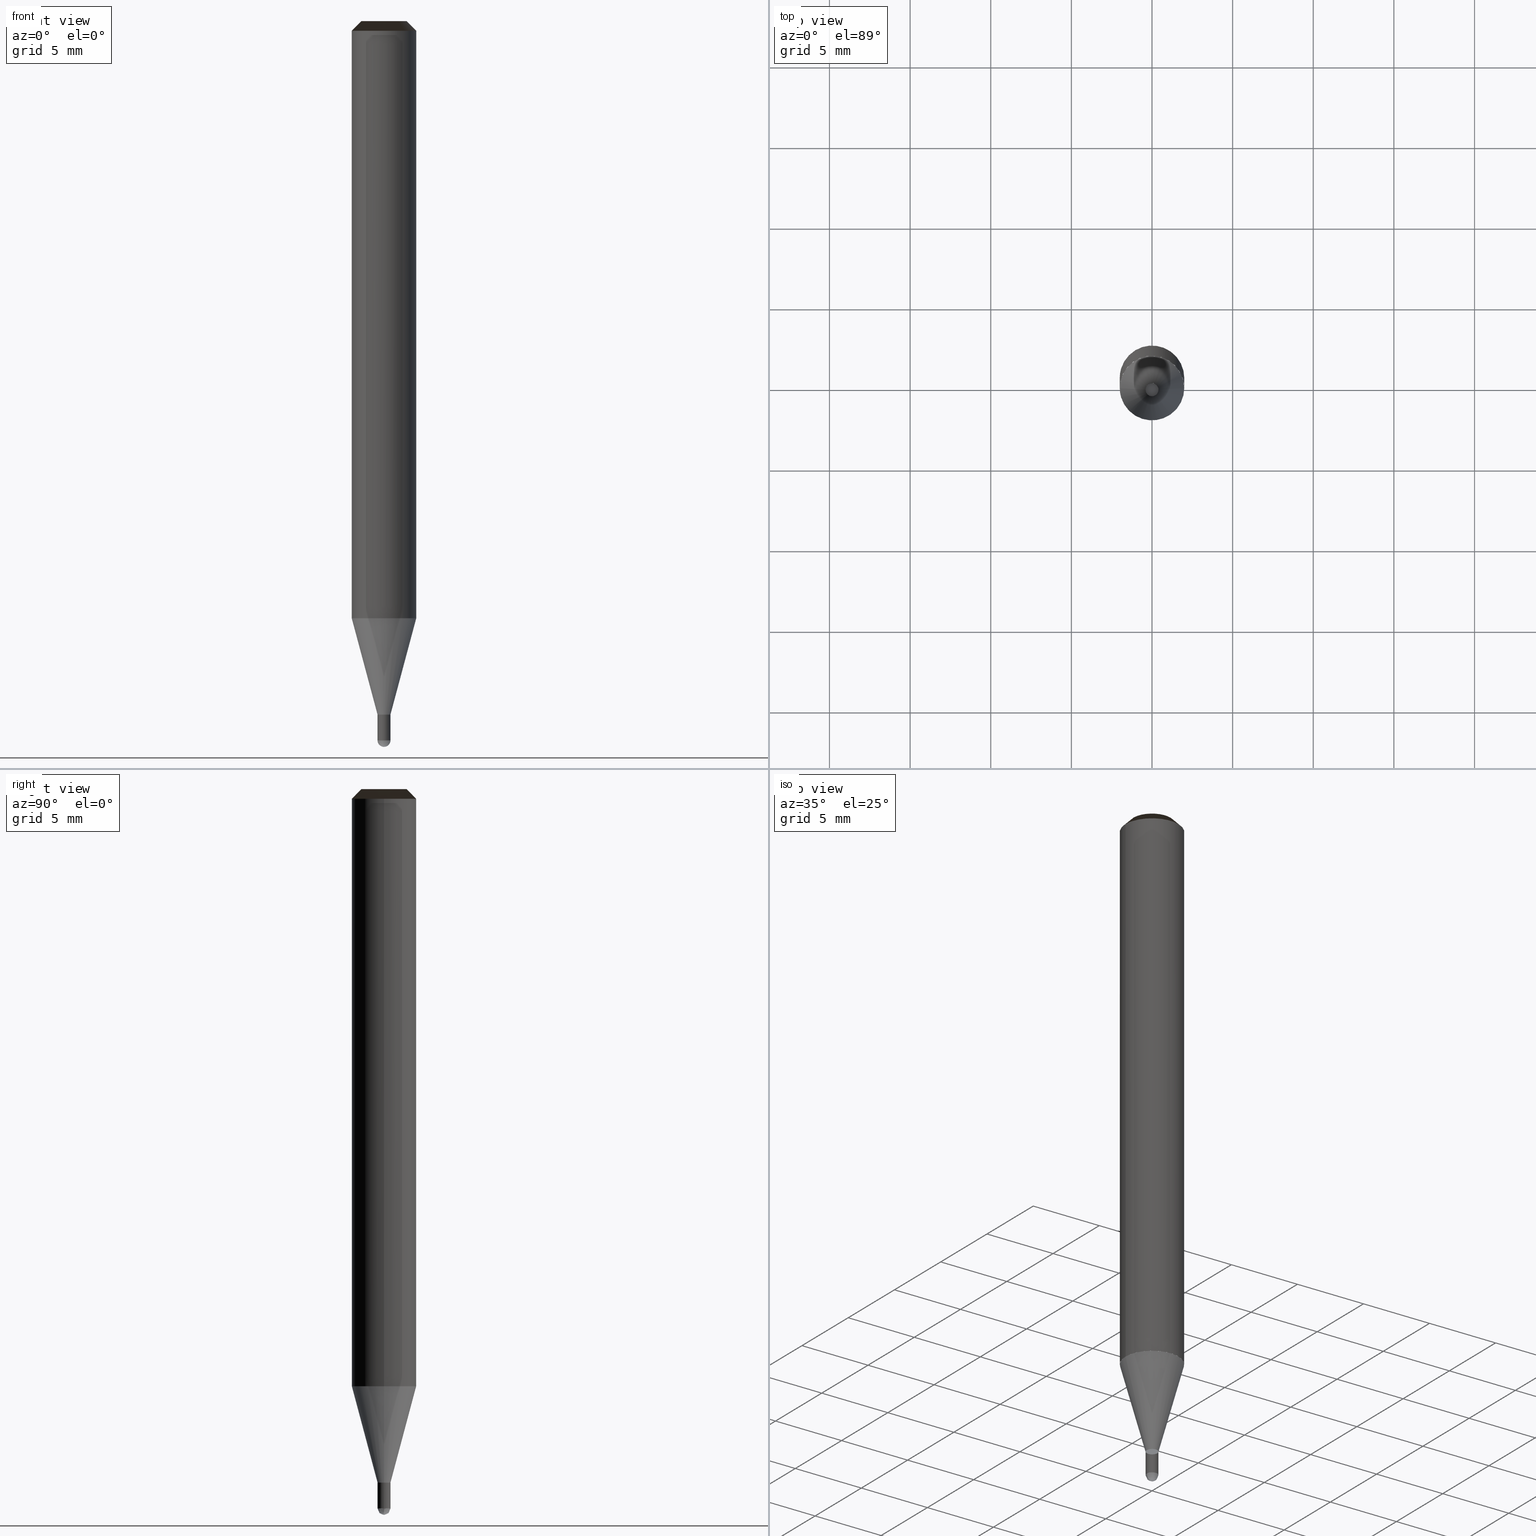
[diagram: canonical four-view strip — front | top / right | iso, engineering-drawing reading convention]
A machine part, canonical four-view strip (front | top / right | iso — engineering-drawing reading convention). The complete STEP part file that produces these views, byte-faithful:
ISO-10303-21;
HEADER;
/* Generated by ISBE GmbH (www.isbe.de) */
/* OPTION: using custom schema-name function */

FILE_DESCRIPTION(
/* description */ (''),
/* implementation_level */ '2;1');

FILE_NAME(
/*name*/ 'SHBS-2008-S04-STH',
/*time_stamp*/'2023-9-12T13:7:11',
/*author*/ ('ISBE GmbH'),
/*organization*/ ('ISBE GmbH'),
/*preprocessor_version*/ 'STEP IO v1.0',
/*originating_system*/ '',
/*authorisation*/ '');

FILE_SCHEMA (('AUTOMOTIVE_DESIGN'));
ENDSEC;

DATA;
#10=SHAPE_DEFINITION_REPRESENTATION(#11,#57);
#11=PRODUCT_DEFINITION_SHAPE('Document','',#13);
#12=PRODUCT_DEFINITION_CONTEXT('3D Mechanical Parts',#17,'design');
#13=PRODUCT_DEFINITION('A','First version',#14,#12);
#14=PRODUCT_DEFINITION_FORMATION_WITH_SPECIFIED_SOURCE('A','First version',#19,.MADE.);
#15=PRODUCT_RELATED_PRODUCT_CATEGORY('tool','tool',(#19));
#16=APPLICATION_PROTOCOL_DEFINITION('Draft International Standard', 'automotive_design',1999,#17);
#17=APPLICATION_CONTEXT('data for automotive mechanical design processes');
#18=PRODUCT_CONTEXT('3D Mechanical Parts',#17,'mechanical');
#19=PRODUCT('Document','Document','ISBE converted to STEP',(#18));
#20=(
LENGTH_UNIT()
NAMED_UNIT(*)
SI_UNIT(.MILLI.,.METRE.)
);
#21=(
NAMED_UNIT(*)
PLANE_ANGLE_UNIT()
SI_UNIT($,.RADIAN.)
);
#22=DIMENSIONAL_EXPONENTS(0.,0.,0.,0.,0.,0.,0.);
#23=PLANE_ANGLE_MEASURE_WITH_UNIT(PLANE_ANGLE_MEASURE(0.01745329252),#21);
#24=(
CONVERSION_BASED_UNIT('DEGREES',#23)
NAMED_UNIT(#22)
PLANE_ANGLE_UNIT()
);
#25=(
NAMED_UNIT(*)
SI_UNIT($,.STERADIAN.)
SOLID_ANGLE_UNIT()
);
#26=UNCERTAINTY_MEASURE_WITH_UNIT(LENGTH_MEASURE(0.001),#20, 'DISTANCE_ACCURACY_VALUE', 'Maximum model space distance between geometric entities at asserted connectivities');
#27=(
GEOMETRIC_REPRESENTATION_CONTEXT(3)
GLOBAL_UNCERTAINTY_ASSIGNED_CONTEXT((#26))
GLOBAL_UNIT_ASSIGNED_CONTEXT((#25,#24,#20))
REPRESENTATION_CONTEXT('ID1','3D')
);
#28=CARTESIAN_POINT('',(0.0,0.0,0.0));
#29=DIRECTION('',(1.0,0.0,0.0));
#30=DIRECTION('',(0.0,0.0,1.0));
#31=AXIS2_PLACEMENT_3D('',#28,#30,#29);
#32=CARTESIAN_POINT('',(0.0,0.0,0.0));
#33=DIRECTION('',(1.0,0.0,0.0));
#34=DIRECTION('',(0.0,0.0,1.0));
#35=AXIS2_PLACEMENT_3D('',#32,#34,#33);
#36=CARTESIAN_POINT('',(0.0,0.0,0.0));
#37=DIRECTION('',(1.0,0.0,0.0));
#38=DIRECTION('',(0.0,0.0,1.0));
#39=AXIS2_PLACEMENT_3D('',#36,#38,#37);
#40=CARTESIAN_POINT('',(0.0,0.0,0.0));
#41=DIRECTION('',(0.0,0.0,1.0));
#42=DIRECTION('',(1.0,0.0,0.0));
#43=AXIS2_PLACEMENT_3D('MCS',#40,#42,#41);
#44=CARTESIAN_POINT('',(0.0,0.0,37.028));
#45=DIRECTION('',(0.0,0.0,1.0));
#46=DIRECTION('',(1.0,0.0,0.0));
#47=AXIS2_PLACEMENT_3D('PCS',#44,#46,#45);
#48=CARTESIAN_POINT('',(0.0,0.0,-7.972));
#49=DIRECTION('',(0.0,0.0,1.0));
#50=DIRECTION('',(1.0,0.0,0.0));
#51=AXIS2_PLACEMENT_3D('CIP',#48,#50,#49);
#52=CARTESIAN_POINT('',(0.0,-0.4,-7.972));
#53=DIRECTION('',(0.0,0.0,1.0));
#54=DIRECTION('',(1.0,0.0,0.0));
#55=AXIS2_PLACEMENT_3D('CRP',#52,#54,#53);
#57=SHAPE_REPRESENTATION('Document',(#31,#35,#39,#43,#47,#51,#55),#27);
#58=DIRECTION('',(1.0,0.0,0.0));
#59=DIRECTION('',(0.0,0.0,1.0));
#60=CARTESIAN_POINT('',(-0.003999796276,-0.000040370176,-7.971935880373));
#61=CARTESIAN_POINT('',(-0.003874368308,-0.01222120494,-7.97179448648));
#62=CARTESIAN_POINT('',(-0.003716583176,-0.025357166712,-7.9711781571));
#63=CARTESIAN_POINT('',(-0.003515768424,-0.038247964823,-7.97015164518));
#64=CARTESIAN_POINT('',(-0.003247927384,-0.051047643673,-7.968716005529));
#65=CARTESIAN_POINT('',(-0.002890768818,-0.063774475261,-7.966872713366));
#66=CARTESIAN_POINT('',(-0.002422680824,-0.076425061531,-7.964623662796));
#67=CARTESIAN_POINT('',(-0.001822691888,-0.088989709304,-7.961971164873));
#68=CARTESIAN_POINT('',(-0.001070546994,-0.101456185614,-7.958917945216));
#69=CARTESIAN_POINT('',(-0.000146807515,-0.113810939967,-7.955467141215));
#70=CARTESIAN_POINT('',(0.000967043319,-0.126039577426,-7.951622298804));
#71=CARTESIAN_POINT('',(0.002288494576,-0.138127065136,-7.94738736882));
#72=CARTESIAN_POINT('',(0.003833903465,-0.150057832773,-7.942766702938));
#73=CARTESIAN_POINT('',(0.005618393918,-0.161815828734,-7.937765049206));
#74=CARTESIAN_POINT('',(0.007655758722,-0.173384558741,-7.932387547161));
#75=CARTESIAN_POINT('',(0.009958365832,-0.184747119437,-7.926639722549));
#76=CARTESIAN_POINT('',(0.012537069549,-0.195886233366,-7.920527481649));
#77=CARTESIAN_POINT('',(0.01540112717,-0.206784288723,-7.914057105202));
#78=CARTESIAN_POINT('',(0.018558121805,-0.217423385737,-7.907235241957));
#79=CARTESIAN_POINT('',(0.02201389199,-0.227785390677,-7.900068901839));
#80=CARTESIAN_POINT('',(0.025772468799,-0.237851997935,-7.892565448747));
#81=CARTESIAN_POINT('',(0.029836021111,-0.247604800292,-7.884732592987));
#82=CARTESIAN_POINT('',(0.034204809706,-0.257025367212,-7.876578383348));
#83=CARTESIAN_POINT('',(0.038877150824,-0.266095330795,-7.86811119883));
#84=CARTESIAN_POINT('',(0.043849389818,-0.274796478884,-7.859339740039));
#85=CARTESIAN_POINT('',(0.049115885447,-0.283110854618,-7.850273020241));
#86=CARTESIAN_POINT('',(0.054669005368,-0.291020861666,-7.840920356105));
#87=CARTESIAN_POINT('',(0.060499133244,-0.29850937419,-7.831291358123));
#88=CARTESIAN_POINT('',(0.066594687878,-0.305559850542,-7.821395920743));
#89=CARTESIAN_POINT('',(0.072942154644,-0.312156449567,-7.811244212196));
#90=CARTESIAN_POINT('',(0.079526129428,-0.318284148352,-7.800846664049));
#91=CARTESIAN_POINT('',(0.086329375163,-0.323928860143,-7.790213960484));
#92=CARTESIAN_POINT('',(0.093332890921,-0.329077551182,-7.779357027324));
#93=CARTESIAN_POINT('',(0.10051599344,-0.333718355096,-7.768287020802));
#94=CARTESIAN_POINT('',(0.107856410793,-0.337840683548,-7.757015316096));
#95=CARTESIAN_POINT('',(0.115330387815,-0.341435331791,-7.745553495647));
#96=CARTESIAN_POINT('',(0.122912802734,-0.344494577817,-7.733913337249));
#97=CARTESIAN_POINT('',(0.130577294378,-0.347012273847,-7.722106801952));
#98=CARTESIAN_POINT('',(0.138296399141,-0.348983928934,-7.710146021769));
#99=CARTESIAN_POINT('',(0.14604169681,-0.35040678153,-7.698043287209));
#100=CARTESIAN_POINT('',(0.153783964235,-0.351279860988,-7.685811034652));
#101=CARTESIAN_POINT('',(0.161493335708,-0.351604037024,-7.673461833564));
#102=CARTESIAN_POINT('',(0.169139468823,-0.351382056341,-7.661008373583));
#103=CARTESIAN_POINT('',(0.176691714522,-0.35061856569,-7.648463451481));
#104=CARTESIAN_POINT('',(0.184119289957,-0.349320120844,-7.635839958013));
#105=CARTESIAN_POINT('',(0.191391452737,-0.347495181064,-7.623150864674));
#106=CARTESIAN_POINT('',(0.198477675124,-0.345154088831,-7.610409210363));
#107=CARTESIAN_POINT('',(0.205347816694,-0.34230903477,-7.597628087992));
#108=CARTESIAN_POINT('',(0.211972294012,-0.33897400784,-7.584820631029));
#109=CARTESIAN_POINT('',(0.218322245869,-0.335164731078,-7.572));
#110=CARTESIAN_POINT('',(0.253787724544,-0.309179221279,-7.49580952381));
#111=CARTESIAN_POINT('',(0.286187055884,-0.279458349391,-7.419619047619));
#112=CARTESIAN_POINT('',(0.315128805972,-0.246361189408,-7.343428571429));
#113=CARTESIAN_POINT('',(0.340263313807,-0.210287606095,-7.267238095238));
#114=CARTESIAN_POINT('',(0.361286915748,-0.171673424004,-7.191047619048));
#115=CARTESIAN_POINT('',(0.377945614242,-0.130985162041,-7.114857142857));
#116=CARTESIAN_POINT('',(0.390038146506,-0.088714397197,-7.038666666667));
#117=CARTESIAN_POINT('',(0.39741841609,-0.045371825538,-6.962476190476));
#118=CARTESIAN_POINT('',(0.399997257948,-0.001481092213,-6.886285714286));
#119=CARTESIAN_POINT('',(0.397743515691,0.042427534991,-6.810095238095));
#120=CARTESIAN_POINT('',(0.390684418005,0.085823572102,-6.733904761905));
#121=CARTESIAN_POINT('',(0.378905249681,0.128182728027,-6.657714285714));
#122=CARTESIAN_POINT('',(0.362548321249,0.168993238798,-6.581523809524));
#123=CARTESIAN_POINT('',(0.341811249646,0.20776205047,-6.505333333333));
#124=CARTESIAN_POINT('',(0.316944570696,0.244020775973,-6.429142857143));
#125=CARTESIAN_POINT('',(0.288248712252,0.277331353952,-6.352952380952));
#126=CARTESIAN_POINT('',(0.256070364566,0.307291341223,-6.276761904762));
#127=CARTESIAN_POINT('',(0.220798291732,0.333538774909,-6.200571428571));
#128=CARTESIAN_POINT('',(0.182858634819,0.355756545509,-6.124380952381));
#129=CARTESIAN_POINT('',(0.142709763426,0.373676228068,-6.04819047619));
#130=CARTESIAN_POINT('',(0.100836737875,0.387081325169,-5.972));
#131=CARTESIAN_POINT('',(0.003999796276,0.000040370176,-7.971935880373));
#132=CARTESIAN_POINT('',(0.003874368308,0.01222120494,-7.97179448648));
#133=CARTESIAN_POINT('',(0.003716583176,0.025357166712,-7.9711781571));
#134=CARTESIAN_POINT('',(0.003515768424,0.038247964823,-7.97015164518));
#135=CARTESIAN_POINT('',(0.003247927384,0.051047643673,-7.968716005529));
#136=CARTESIAN_POINT('',(0.002890768818,0.063774475261,-7.966872713366));
#137=CARTESIAN_POINT('',(0.002422680824,0.076425061531,-7.964623662796));
#138=CARTESIAN_POINT('',(0.001822691888,0.088989709304,-7.961971164873));
#139=CARTESIAN_POINT('',(0.001070546994,0.101456185614,-7.958917945216));
#140=CARTESIAN_POINT('',(0.000146807515,0.113810939967,-7.955467141215));
#141=CARTESIAN_POINT('',(-0.000967043319,0.126039577426,-7.951622298804));
#142=CARTESIAN_POINT('',(-0.002288494576,0.138127065136,-7.94738736882));
#143=CARTESIAN_POINT('',(-0.003833903465,0.150057832773,-7.942766702938));
#144=CARTESIAN_POINT('',(-0.005618393918,0.161815828734,-7.937765049206));
#145=CARTESIAN_POINT('',(-0.007655758722,0.173384558741,-7.932387547161));
#146=CARTESIAN_POINT('',(-0.009958365832,0.184747119437,-7.926639722549));
#147=CARTESIAN_POINT('',(-0.012537069549,0.195886233366,-7.920527481649));
#148=CARTESIAN_POINT('',(-0.01540112717,0.206784288723,-7.914057105202));
#149=CARTESIAN_POINT('',(-0.018558121805,0.217423385737,-7.907235241957));
#150=CARTESIAN_POINT('',(-0.02201389199,0.227785390677,-7.900068901839));
#151=CARTESIAN_POINT('',(-0.025772468799,0.237851997935,-7.892565448747));
#152=CARTESIAN_POINT('',(-0.029836021111,0.247604800292,-7.884732592987));
#153=CARTESIAN_POINT('',(-0.034204809706,0.257025367212,-7.876578383348));
#154=CARTESIAN_POINT('',(-0.038877150824,0.266095330795,-7.86811119883));
#155=CARTESIAN_POINT('',(-0.043849389818,0.274796478884,-7.859339740039));
#156=CARTESIAN_POINT('',(-0.049115885447,0.283110854618,-7.850273020241));
#157=CARTESIAN_POINT('',(-0.054669005368,0.291020861666,-7.840920356105));
#158=CARTESIAN_POINT('',(-0.060499133244,0.29850937419,-7.831291358123));
#159=CARTESIAN_POINT('',(-0.066594687878,0.305559850542,-7.821395920743));
#160=CARTESIAN_POINT('',(-0.072942154644,0.312156449567,-7.811244212196));
#161=CARTESIAN_POINT('',(-0.079526129428,0.318284148352,-7.800846664049));
#162=CARTESIAN_POINT('',(-0.086329375163,0.323928860143,-7.790213960484));
#163=CARTESIAN_POINT('',(-0.093332890921,0.329077551182,-7.779357027324));
#164=CARTESIAN_POINT('',(-0.10051599344,0.333718355096,-7.768287020802));
#165=CARTESIAN_POINT('',(-0.107856410793,0.337840683549,-7.757015316096));
#166=CARTESIAN_POINT('',(-0.115330387815,0.341435331791,-7.745553495647));
#167=CARTESIAN_POINT('',(-0.122912802734,0.344494577817,-7.733913337249));
#168=CARTESIAN_POINT('',(-0.130577294378,0.347012273847,-7.722106801952));
#169=CARTESIAN_POINT('',(-0.138296399141,0.348983928934,-7.710146021769));
#170=CARTESIAN_POINT('',(-0.14604169681,0.35040678153,-7.698043287209));
#171=CARTESIAN_POINT('',(-0.153783964235,0.351279860988,-7.685811034652));
#172=CARTESIAN_POINT('',(-0.161493335708,0.351604037024,-7.673461833564));
#173=CARTESIAN_POINT('',(-0.169139468823,0.351382056341,-7.661008373583));
#174=CARTESIAN_POINT('',(-0.176691714522,0.35061856569,-7.648463451481));
#175=CARTESIAN_POINT('',(-0.184119289957,0.349320120844,-7.635839958013));
#176=CARTESIAN_POINT('',(-0.191391452737,0.347495181064,-7.623150864674));
#177=CARTESIAN_POINT('',(-0.198477675124,0.345154088831,-7.610409210363));
#178=CARTESIAN_POINT('',(-0.205347816694,0.34230903477,-7.597628087992));
#179=CARTESIAN_POINT('',(-0.211972294012,0.33897400784,-7.584820631029));
#180=CARTESIAN_POINT('',(-0.218322245869,0.335164731078,-7.572));
#181=CARTESIAN_POINT('',(-0.253787724544,0.309179221279,-7.49580952381));
#182=CARTESIAN_POINT('',(-0.286187055884,0.279458349391,-7.419619047619));
#183=CARTESIAN_POINT('',(-0.315128805972,0.246361189408,-7.343428571429));
#184=CARTESIAN_POINT('',(-0.340263313807,0.210287606095,-7.267238095238));
#185=CARTESIAN_POINT('',(-0.361286915748,0.171673424004,-7.191047619048));
#186=CARTESIAN_POINT('',(-0.377945614242,0.130985162041,-7.114857142857));
#187=CARTESIAN_POINT('',(-0.390038146506,0.088714397197,-7.038666666667));
#188=CARTESIAN_POINT('',(-0.39741841609,0.045371825538,-6.962476190476));
#189=CARTESIAN_POINT('',(-0.399997257948,0.001481092213,-6.886285714286));
#190=CARTESIAN_POINT('',(-0.397743515691,-0.042427534991,-6.810095238095));
#191=CARTESIAN_POINT('',(-0.390684418005,-0.085823572102,-6.733904761905));
#192=CARTESIAN_POINT('',(-0.378905249681,-0.128182728027,-6.657714285714));
#193=CARTESIAN_POINT('',(-0.362548321249,-0.168993238798,-6.581523809524));
#194=CARTESIAN_POINT('',(-0.341811249646,-0.20776205047,-6.505333333333));
#195=CARTESIAN_POINT('',(-0.316944570696,-0.244020775973,-6.429142857143));
#196=CARTESIAN_POINT('',(-0.288248712252,-0.277331353952,-6.352952380952));
#197=CARTESIAN_POINT('',(-0.256070364566,-0.307291341223,-6.276761904762));
#198=CARTESIAN_POINT('',(-0.220798291732,-0.333538774909,-6.200571428571));
#199=CARTESIAN_POINT('',(-0.182858634819,-0.355756545509,-6.124380952381));
#200=CARTESIAN_POINT('',(-0.142709763426,-0.373676228068,-6.04819047619));
#201=CARTESIAN_POINT('',(-0.100836737875,-0.387081325169,-5.972));
#202=CARTESIAN_POINT('',(0.0,0.0,-7.972));
#203=CARTESIAN_POINT('',(0.4,0.0,-7.972));
#204=CARTESIAN_POINT('',(0.4,0.4,-7.972));
#205=CARTESIAN_POINT('',(0.0,0.4,-7.972));
#206=CARTESIAN_POINT('',(-0.4,0.4,-7.972));
#207=CARTESIAN_POINT('',(-0.4,0.0,-7.972));
#208=CARTESIAN_POINT('',(0.4,0.0,-7.572));
#209=CARTESIAN_POINT('',(0.4,0.4,-7.572));
#210=CARTESIAN_POINT('',(0.0,0.4,-7.572));
#211=CARTESIAN_POINT('',(-0.4,0.4,-7.572));
#212=CARTESIAN_POINT('',(-0.4,0.0,-7.572));
#213=CARTESIAN_POINT('',(0.4,0.0,-5.972));
#214=CARTESIAN_POINT('',(0.4,0.4,-5.972));
#215=CARTESIAN_POINT('',(0.0,0.4,-5.972));
#216=CARTESIAN_POINT('',(-0.4,0.4,-5.972));
#217=CARTESIAN_POINT('',(-0.4,0.0,-5.972));
#218=CARTESIAN_POINT('',(0.0,0.0,-5.972));
#219=CARTESIAN_POINT('',(-0.4,-0.4,-7.972));
#220=CARTESIAN_POINT('',(0.0,-0.4,-7.972));
#221=CARTESIAN_POINT('',(0.4,-0.4,-7.972));
#222=CARTESIAN_POINT('',(-0.4,-0.4,-7.572));
#223=CARTESIAN_POINT('',(0.0,-0.4,-7.572));
#224=CARTESIAN_POINT('',(0.4,-0.4,-7.572));
#225=CARTESIAN_POINT('',(-0.4,-0.4,-5.972));
#226=CARTESIAN_POINT('',(0.0,-0.4,-5.972));
#227=CARTESIAN_POINT('',(0.4,-0.4,-5.972));
#228=CARTESIAN_POINT('',(0.4,0.0,-5.97128129211));
#229=CARTESIAN_POINT('',(0.4,0.4,-5.97128129211));
#230=CARTESIAN_POINT('',(0.0,0.4,-5.97128129211));
#231=CARTESIAN_POINT('',(-0.4,0.4,-5.97128129211));
#232=CARTESIAN_POINT('',(-0.4,0.0,-5.97128129211));
#233=CARTESIAN_POINT('',(2.0,0.0,-0.0));
#234=CARTESIAN_POINT('',(2.0,2.0,-0.0));
#235=CARTESIAN_POINT('',(0.0,2.0,-0.0));
#236=CARTESIAN_POINT('',(-2.0,2.0,-0.0));
#237=CARTESIAN_POINT('',(-2.0,0.0,-0.0));
#238=CARTESIAN_POINT('',(2.0,0.0,36.428));
#239=CARTESIAN_POINT('',(2.0,2.0,36.428));
#240=CARTESIAN_POINT('',(0.0,2.0,36.428));
#241=CARTESIAN_POINT('',(-2.0,2.0,36.428));
#242=CARTESIAN_POINT('',(-2.0,0.0,36.428));
#243=CARTESIAN_POINT('',(1.4,0.0,37.028));
#244=CARTESIAN_POINT('',(1.4,1.4,37.028));
#245=CARTESIAN_POINT('',(0.0,1.4,37.028));
#246=CARTESIAN_POINT('',(-1.4,1.4,37.028));
#247=CARTESIAN_POINT('',(-1.4,0.0,37.028));
#248=CARTESIAN_POINT('',(0.0,0.0,37.028));
#249=CARTESIAN_POINT('',(-0.4,-0.4,-5.97128129211));
#250=CARTESIAN_POINT('',(0.0,-0.4,-5.97128129211));
#251=CARTESIAN_POINT('',(0.4,-0.4,-5.97128129211));
#252=CARTESIAN_POINT('',(-2.0,-2.0,-0.0));
#253=CARTESIAN_POINT('',(0.0,-2.0,-0.0));
#254=CARTESIAN_POINT('',(2.0,-2.0,-0.0));
#255=CARTESIAN_POINT('',(-2.0,-2.0,36.428));
#256=CARTESIAN_POINT('',(0.0,-2.0,36.428));
#257=CARTESIAN_POINT('',(2.0,-2.0,36.428));
#258=CARTESIAN_POINT('',(-1.4,-1.4,37.028));
#259=CARTESIAN_POINT('',(0.0,-1.4,37.028));
#260=CARTESIAN_POINT('',(1.4,-1.4,37.028));
#261=(
BOUNDED_CURVE()
B_SPLINE_CURVE(1,(#60,#61,#62,#63,#64,#65,#66,#67,#68,#69,#70,#71,#72,#73,#74,#75,#76,#77,#78,#79,#80,#81,#82,#83,#84,#85,#86,#87,#88,#89,#90,#91,#92,#93,#94,#95,#96,#97,#98,#99,#100,#101,#102,#103,#104,#105,#106,#107,#108,#109,#110,#111,#112,#113,#114,#115,#116,#117,#118,#119,#120,#121,#122,#123,#124,#125,#126,#127,#128,#129,#130),.UNSPECIFIED.,.F.,.F.)
B_SPLINE_CURVE_WITH_KNOTS((2,1,1,1,1,1,1,1,1,1,1,1,1,1,1,1,1,1,1,1,1,1,1,1,1,1,1,1,1,1,1,1,1,1,1,1,1,1,1,1,1,1,1,1,1,1,1,1,1,1,1,1,1,1,1,1,1,1,1,1,1,1,1,1,1,1,1,1,1,1,2),
(0.0,0.004846184492,0.010077865492,0.015222747233,0.020347563717,0.025465164135,0.030579936484,0.035693957531,0.040808516949,0.045924629275,0.051043242621,0.056165335563,0.06129196555,0.066424293037,0.071563591661,0.076711249284,0.081868762382,0.08703772521,0.09221981466,0.09741677153,0.102630378845,0.107862437796,0.113114741924,0.118389050129,0.123687059113,0.129010375851,0.134360490668,0.139738751452,0.145146339508,0.150584247483,0.156053259741,0.161553935485,0.167086594864,0.172651308229,0.178247888623,0.183875887548,0.189534593983,0.195223036567,0.200939988858,0.206683977493,0.212453293092,0.218246003703,0.224059970571,0.229892866018,0.235742193205,0.241605307532,0.247479439451,0.25336171846,0.259249198033,0.265138881262,0.300132267869,0.335125654475,0.370119041082,0.405112427688,0.440105814295,0.475099200901,0.510092587508,0.545085974115,0.580079360721,0.615072747328,0.650066133934,0.685059520541,0.720052907147,0.755046293754,0.790039680361,0.825033066967,0.860026453574,0.89501984018,0.930013226787,0.965006613393,1.0),.UNSPECIFIED.)
CURVE()
GEOMETRIC_REPRESENTATION_ITEM()
RATIONAL_B_SPLINE_CURVE((1.0,1.0,1.0,1.0,1.0,1.0,1.0,1.0,1.0,1.0,1.0,1.0,1.0,1.0,1.0,1.0,1.0,1.0,1.0,1.0,1.0,1.0,1.0,1.0,1.0,1.0,1.0,1.0,1.0,1.0,1.0,1.0,1.0,1.0,1.0,1.0,1.0,1.0,1.0,1.0,1.0,1.0,1.0,1.0,1.0,1.0,1.0,1.0,1.0,1.0,1.0,1.0,1.0,1.0,1.0,1.0,1.0,1.0,1.0,1.0,1.0,1.0,1.0,1.0,1.0,1.0,1.0,1.0,1.0,1.0,1.0))
REPRESENTATION_ITEM('')
);
#262=(
BOUNDED_CURVE()
B_SPLINE_CURVE(1,(#131,#132,#133,#134,#135,#136,#137,#138,#139,#140,#141,#142,#143,#144,#145,#146,#147,#148,#149,#150,#151,#152,#153,#154,#155,#156,#157,#158,#159,#160,#161,#162,#163,#164,#165,#166,#167,#168,#169,#170,#171,#172,#173,#174,#175,#176,#177,#178,#179,#180,#181,#182,#183,#184,#185,#186,#187,#188,#189,#190,#191,#192,#193,#194,#195,#196,#197,#198,#199,#200,#201),.UNSPECIFIED.,.F.,.F.)
B_SPLINE_CURVE_WITH_KNOTS((2,1,1,1,1,1,1,1,1,1,1,1,1,1,1,1,1,1,1,1,1,1,1,1,1,1,1,1,1,1,1,1,1,1,1,1,1,1,1,1,1,1,1,1,1,1,1,1,1,1,1,1,1,1,1,1,1,1,1,1,1,1,1,1,1,1,1,1,1,1,2),
(0.0,0.004846184492,0.010077865492,0.015222747233,0.020347563717,0.025465164135,0.030579936484,0.035693957531,0.040808516949,0.045924629275,0.051043242621,0.056165335563,0.06129196555,0.066424293037,0.071563591661,0.076711249284,0.081868762382,0.08703772521,0.09221981466,0.09741677153,0.102630378845,0.107862437796,0.113114741924,0.118389050129,0.123687059113,0.129010375851,0.134360490668,0.139738751452,0.145146339508,0.150584247483,0.156053259741,0.161553935485,0.167086594864,0.172651308229,0.178247888623,0.183875887548,0.189534593983,0.195223036567,0.200939988858,0.206683977493,0.212453293092,0.218246003703,0.224059970571,0.229892866018,0.235742193205,0.241605307532,0.247479439451,0.25336171846,0.259249198033,0.265138881262,0.300132267869,0.335125654475,0.370119041082,0.405112427688,0.440105814295,0.475099200901,0.510092587508,0.545085974115,0.580079360721,0.615072747328,0.650066133934,0.685059520541,0.720052907147,0.755046293754,0.790039680361,0.825033066967,0.860026453574,0.89501984018,0.930013226787,0.965006613393,1.0),.UNSPECIFIED.)
CURVE()
GEOMETRIC_REPRESENTATION_ITEM()
RATIONAL_B_SPLINE_CURVE((1.0,1.0,1.0,1.0,1.0,1.0,1.0,1.0,1.0,1.0,1.0,1.0,1.0,1.0,1.0,1.0,1.0,1.0,1.0,1.0,1.0,1.0,1.0,1.0,1.0,1.0,1.0,1.0,1.0,1.0,1.0,1.0,1.0,1.0,1.0,1.0,1.0,1.0,1.0,1.0,1.0,1.0,1.0,1.0,1.0,1.0,1.0,1.0,1.0,1.0,1.0,1.0,1.0,1.0,1.0,1.0,1.0,1.0,1.0,1.0,1.0,1.0,1.0,1.0,1.0,1.0,1.0,1.0,1.0,1.0,1.0))
REPRESENTATION_ITEM('')
);
#263=SHAPE_REPRESENTATION_RELATIONSHIP('','',#57,#264);
#264=GEOMETRICALLY_BOUNDED_WIREFRAME_SHAPE_REPRESENTATION('Curves',(#265,#31),#27);
#265=GEOMETRIC_CURVE_SET('CurveSet',(#261,#262));
#266=(
BOUNDED_SURFACE()
B_SPLINE_SURFACE(2,2,(
(#202,#202,#202,#202,#202),
(#203,#204,#205,#206,#207),
(#208,#209,#210,#211,#212)
), .UNSPECIFIED.,.F.,.F.,.F.)
B_SPLINE_SURFACE_WITH_KNOTS((3,3),(3,2,3),(
0.0,1.0),(
0.0,0.5,1.0), .UNSPECIFIED.)
GEOMETRIC_REPRESENTATION_ITEM()
RATIONAL_B_SPLINE_SURFACE(((1.0,0.707106781187,1.0,0.707106781187,1.0),
(0.707106781187,0.5,0.707106781187,0.5,0.707106781187),
(1.0,0.707106781187,1.0,0.707106781187,1.0)
))
REPRESENTATION_ITEM('')
SURFACE()
);
#267=(
BOUNDED_CURVE()
B_SPLINE_CURVE(2,(#208,#209,#210,#211,#212),.UNSPECIFIED.,.F.,.F.)
B_SPLINE_CURVE_WITH_KNOTS((3,2,3),
(0.0,0.5,1.0),.UNSPECIFIED.)
CURVE()
GEOMETRIC_REPRESENTATION_ITEM()
RATIONAL_B_SPLINE_CURVE((1.0,0.707106781187,1.0,0.707106781187,1.0))
REPRESENTATION_ITEM('')
);
#268=(
BOUNDED_CURVE()
B_SPLINE_CURVE(2,(#212,#207,#202),.UNSPECIFIED.,.F.,.F.)
B_SPLINE_CURVE_WITH_KNOTS((3,3),
(0.0,1.0),.UNSPECIFIED.)
CURVE()
GEOMETRIC_REPRESENTATION_ITEM()
RATIONAL_B_SPLINE_CURVE((1.0,0.707106781187,1.0))
REPRESENTATION_ITEM('')
);
#269=(
BOUNDED_CURVE()
B_SPLINE_CURVE(2,(#202,#203,#208),.UNSPECIFIED.,.F.,.F.)
B_SPLINE_CURVE_WITH_KNOTS((3,3),
(0.0,1.0),.UNSPECIFIED.)
CURVE()
GEOMETRIC_REPRESENTATION_ITEM()
RATIONAL_B_SPLINE_CURVE((1.0,0.707106781187,1.0))
REPRESENTATION_ITEM('')
);
#270=VERTEX_POINT('',#202);
#271=VERTEX_POINT('',#208);
#272=VERTEX_POINT('',#212);
#273=EDGE_CURVE('',#271,#272,#267,.T.);
#274=EDGE_CURVE('',#272,#270,#268,.T.);
#275=EDGE_CURVE('',#270,#271,#269,.T.);
#276=ORIENTED_EDGE('',*,*,#273,.T.);
#277=ORIENTED_EDGE('',*,*,#274,.T.);
#278=ORIENTED_EDGE('',*,*,#275,.T.);
#279=EDGE_LOOP('',(#276,#277,#278));
#280=FACE_OUTER_BOUND('',#279,.T.);
#281=ADVANCED_FACE('',(#280),#266,.T.);
#282=(
BOUNDED_SURFACE()
B_SPLINE_SURFACE(1,2,(
(#208,#209,#210,#211,#212),
(#213,#214,#215,#216,#217)
), .UNSPECIFIED.,.F.,.F.,.F.)
B_SPLINE_SURFACE_WITH_KNOTS((2,2),(3,2,3),(
0.0,1.0),(
0.0,0.5,1.0), .UNSPECIFIED.)
GEOMETRIC_REPRESENTATION_ITEM()
RATIONAL_B_SPLINE_SURFACE(((1.0,0.707106781187,1.0,0.707106781187,1.0),
(1.0,0.707106781187,1.0,0.707106781187,1.0)
))
REPRESENTATION_ITEM('')
SURFACE()
);
#283=(
BOUNDED_CURVE()
B_SPLINE_CURVE(2,(#213,#214,#215,#216,#217),.UNSPECIFIED.,.F.,.F.)
B_SPLINE_CURVE_WITH_KNOTS((3,2,3),
(0.0,0.5,1.0),.UNSPECIFIED.)
CURVE()
GEOMETRIC_REPRESENTATION_ITEM()
RATIONAL_B_SPLINE_CURVE((1.0,0.707106781187,1.0,0.707106781187,1.0))
REPRESENTATION_ITEM('')
);
#284=(
BOUNDED_CURVE()
B_SPLINE_CURVE(1,(#217,#212),.UNSPECIFIED.,.F.,.F.)
B_SPLINE_CURVE_WITH_KNOTS((2,2),
(0.0,1.0),.UNSPECIFIED.)
CURVE()
GEOMETRIC_REPRESENTATION_ITEM()
RATIONAL_B_SPLINE_CURVE((1.0,1.0))
REPRESENTATION_ITEM('')
);
#285=(
BOUNDED_CURVE()
B_SPLINE_CURVE(2,(#212,#211,#210,#209,#208),.UNSPECIFIED.,.F.,.F.)
B_SPLINE_CURVE_WITH_KNOTS((3,2,3),
(0.0,0.5,1.0),.UNSPECIFIED.)
CURVE()
GEOMETRIC_REPRESENTATION_ITEM()
RATIONAL_B_SPLINE_CURVE((1.0,0.707106781187,1.0,0.707106781187,1.0))
REPRESENTATION_ITEM('')
);
#286=(
BOUNDED_CURVE()
B_SPLINE_CURVE(1,(#208,#213),.UNSPECIFIED.,.F.,.F.)
B_SPLINE_CURVE_WITH_KNOTS((2,2),
(0.0,1.0),.UNSPECIFIED.)
CURVE()
GEOMETRIC_REPRESENTATION_ITEM()
RATIONAL_B_SPLINE_CURVE((1.0,1.0))
REPRESENTATION_ITEM('')
);
#287=VERTEX_POINT('',#208);
#288=VERTEX_POINT('',#212);
#289=VERTEX_POINT('',#213);
#290=VERTEX_POINT('',#217);
#291=EDGE_CURVE('',#289,#290,#283,.T.);
#292=EDGE_CURVE('',#290,#288,#284,.T.);
#293=EDGE_CURVE('',#288,#287,#285,.T.);
#294=EDGE_CURVE('',#287,#289,#286,.T.);
#295=ORIENTED_EDGE('',*,*,#291,.T.);
#296=ORIENTED_EDGE('',*,*,#292,.T.);
#297=ORIENTED_EDGE('',*,*,#293,.T.);
#298=ORIENTED_EDGE('',*,*,#294,.T.);
#299=EDGE_LOOP('',(#295,#296,#297,#298));
#300=FACE_OUTER_BOUND('',#299,.T.);
#301=ADVANCED_FACE('',(#300),#282,.T.);
#302=(
BOUNDED_SURFACE()
B_SPLINE_SURFACE(1,2,(
(#213,#214,#215,#216,#217),
(#218,#218,#218,#218,#218)
), .UNSPECIFIED.,.F.,.F.,.F.)
B_SPLINE_SURFACE_WITH_KNOTS((2,2),(3,2,3),(
0.0,1.0),(
0.0,0.5,1.0), .UNSPECIFIED.)
GEOMETRIC_REPRESENTATION_ITEM()
RATIONAL_B_SPLINE_SURFACE(((1.0,0.707106781187,1.0,0.707106781187,1.0),
(1.0,0.707106781187,1.0,0.707106781187,1.0)
))
REPRESENTATION_ITEM('')
SURFACE()
);
#303=(
BOUNDED_CURVE()
B_SPLINE_CURVE(1,(#218,#213),.UNSPECIFIED.,.F.,.F.)
B_SPLINE_CURVE_WITH_KNOTS((2,2),
(0.0,1.0),.UNSPECIFIED.)
CURVE()
GEOMETRIC_REPRESENTATION_ITEM()
RATIONAL_B_SPLINE_CURVE((1.0,1.0))
REPRESENTATION_ITEM('')
);
#304=(
BOUNDED_CURVE()
B_SPLINE_CURVE(2,(#213,#214,#215,#216,#217),.UNSPECIFIED.,.F.,.F.)
B_SPLINE_CURVE_WITH_KNOTS((3,2,3),
(0.0,0.5,1.0),.UNSPECIFIED.)
CURVE()
GEOMETRIC_REPRESENTATION_ITEM()
RATIONAL_B_SPLINE_CURVE((1.0,0.707106781187,1.0,0.707106781187,1.0))
REPRESENTATION_ITEM('')
);
#305=(
BOUNDED_CURVE()
B_SPLINE_CURVE(1,(#217,#218),.UNSPECIFIED.,.F.,.F.)
B_SPLINE_CURVE_WITH_KNOTS((2,2),
(0.0,1.0),.UNSPECIFIED.)
CURVE()
GEOMETRIC_REPRESENTATION_ITEM()
RATIONAL_B_SPLINE_CURVE((1.0,1.0))
REPRESENTATION_ITEM('')
);
#306=VERTEX_POINT('',#213);
#307=VERTEX_POINT('',#217);
#308=VERTEX_POINT('',#218);
#309=EDGE_CURVE('',#308,#306,#303,.T.);
#310=EDGE_CURVE('',#306,#307,#304,.T.);
#311=EDGE_CURVE('',#307,#308,#305,.T.);
#312=ORIENTED_EDGE('',*,*,#309,.T.);
#313=ORIENTED_EDGE('',*,*,#310,.T.);
#314=ORIENTED_EDGE('',*,*,#311,.T.);
#315=EDGE_LOOP('',(#312,#313,#314));
#316=FACE_OUTER_BOUND('',#315,.T.);
#317=ADVANCED_FACE('',(#316),#302,.T.);
#318=(
BOUNDED_SURFACE()
B_SPLINE_SURFACE(2,2,(
(#202,#202,#202,#202,#202),
(#207,#219,#220,#221,#203),
(#212,#222,#223,#224,#208)
), .UNSPECIFIED.,.F.,.F.,.F.)
B_SPLINE_SURFACE_WITH_KNOTS((3,3),(3,2,3),(
0.0,1.0),(
0.0,0.5,1.0), .UNSPECIFIED.)
GEOMETRIC_REPRESENTATION_ITEM()
RATIONAL_B_SPLINE_SURFACE(((1.0,0.707106781187,1.0,0.707106781187,1.0),
(0.707106781187,0.5,0.707106781187,0.5,0.707106781187),
(1.0,0.707106781187,1.0,0.707106781187,1.0)
))
REPRESENTATION_ITEM('')
SURFACE()
);
#319=(
BOUNDED_CURVE()
B_SPLINE_CURVE(2,(#212,#207,#202),.UNSPECIFIED.,.F.,.F.)
B_SPLINE_CURVE_WITH_KNOTS((3,3),
(0.0,1.0),.UNSPECIFIED.)
CURVE()
GEOMETRIC_REPRESENTATION_ITEM()
RATIONAL_B_SPLINE_CURVE((1.0,0.707106781187,1.0))
REPRESENTATION_ITEM('')
);
#320=(
BOUNDED_CURVE()
B_SPLINE_CURVE(2,(#202,#203,#208),.UNSPECIFIED.,.F.,.F.)
B_SPLINE_CURVE_WITH_KNOTS((3,3),
(0.0,1.0),.UNSPECIFIED.)
CURVE()
GEOMETRIC_REPRESENTATION_ITEM()
RATIONAL_B_SPLINE_CURVE((1.0,0.707106781187,1.0))
REPRESENTATION_ITEM('')
);
#321=(
BOUNDED_CURVE()
B_SPLINE_CURVE(2,(#208,#224,#223,#222,#212),.UNSPECIFIED.,.F.,.F.)
B_SPLINE_CURVE_WITH_KNOTS((3,2,3),
(0.0,0.5,1.0),.UNSPECIFIED.)
CURVE()
GEOMETRIC_REPRESENTATION_ITEM()
RATIONAL_B_SPLINE_CURVE((1.0,0.707106781187,1.0,0.707106781187,1.0))
REPRESENTATION_ITEM('')
);
#322=VERTEX_POINT('',#202);
#323=VERTEX_POINT('',#208);
#324=VERTEX_POINT('',#212);
#325=EDGE_CURVE('',#324,#322,#319,.T.);
#326=EDGE_CURVE('',#322,#323,#320,.T.);
#327=EDGE_CURVE('',#323,#324,#321,.T.);
#328=ORIENTED_EDGE('',*,*,#325,.T.);
#329=ORIENTED_EDGE('',*,*,#326,.T.);
#330=ORIENTED_EDGE('',*,*,#327,.T.);
#331=EDGE_LOOP('',(#328,#329,#330));
#332=FACE_OUTER_BOUND('',#331,.T.);
#333=ADVANCED_FACE('',(#332),#318,.T.);
#334=(
BOUNDED_SURFACE()
B_SPLINE_SURFACE(1,2,(
(#212,#222,#223,#224,#208),
(#217,#225,#226,#227,#213)
), .UNSPECIFIED.,.F.,.F.,.F.)
B_SPLINE_SURFACE_WITH_KNOTS((2,2),(3,2,3),(
0.0,1.0),(
0.0,0.5,1.0), .UNSPECIFIED.)
GEOMETRIC_REPRESENTATION_ITEM()
RATIONAL_B_SPLINE_SURFACE(((1.0,0.707106781187,1.0,0.707106781187,1.0),
(1.0,0.707106781187,1.0,0.707106781187,1.0)
))
REPRESENTATION_ITEM('')
SURFACE()
);
#335=(
BOUNDED_CURVE()
B_SPLINE_CURVE(1,(#217,#212),.UNSPECIFIED.,.F.,.F.)
B_SPLINE_CURVE_WITH_KNOTS((2,2),
(0.0,1.0),.UNSPECIFIED.)
CURVE()
GEOMETRIC_REPRESENTATION_ITEM()
RATIONAL_B_SPLINE_CURVE((1.0,1.0))
REPRESENTATION_ITEM('')
);
#336=(
BOUNDED_CURVE()
B_SPLINE_CURVE(2,(#212,#222,#223,#224,#208),.UNSPECIFIED.,.F.,.F.)
B_SPLINE_CURVE_WITH_KNOTS((3,2,3),
(0.0,0.5,1.0),.UNSPECIFIED.)
CURVE()
GEOMETRIC_REPRESENTATION_ITEM()
RATIONAL_B_SPLINE_CURVE((1.0,0.707106781187,1.0,0.707106781187,1.0))
REPRESENTATION_ITEM('')
);
#337=(
BOUNDED_CURVE()
B_SPLINE_CURVE(1,(#208,#213),.UNSPECIFIED.,.F.,.F.)
B_SPLINE_CURVE_WITH_KNOTS((2,2),
(0.0,1.0),.UNSPECIFIED.)
CURVE()
GEOMETRIC_REPRESENTATION_ITEM()
RATIONAL_B_SPLINE_CURVE((1.0,1.0))
REPRESENTATION_ITEM('')
);
#338=(
BOUNDED_CURVE()
B_SPLINE_CURVE(2,(#213,#227,#226,#225,#217),.UNSPECIFIED.,.F.,.F.)
B_SPLINE_CURVE_WITH_KNOTS((3,2,3),
(0.0,0.5,1.0),.UNSPECIFIED.)
CURVE()
GEOMETRIC_REPRESENTATION_ITEM()
RATIONAL_B_SPLINE_CURVE((1.0,0.707106781187,1.0,0.707106781187,1.0))
REPRESENTATION_ITEM('')
);
#339=VERTEX_POINT('',#208);
#340=VERTEX_POINT('',#212);
#341=VERTEX_POINT('',#213);
#342=VERTEX_POINT('',#217);
#343=EDGE_CURVE('',#342,#340,#335,.T.);
#344=EDGE_CURVE('',#340,#339,#336,.T.);
#345=EDGE_CURVE('',#339,#341,#337,.T.);
#346=EDGE_CURVE('',#341,#342,#338,.T.);
#347=ORIENTED_EDGE('',*,*,#343,.T.);
#348=ORIENTED_EDGE('',*,*,#344,.T.);
#349=ORIENTED_EDGE('',*,*,#345,.T.);
#350=ORIENTED_EDGE('',*,*,#346,.T.);
#351=EDGE_LOOP('',(#347,#348,#349,#350));
#352=FACE_OUTER_BOUND('',#351,.T.);
#353=ADVANCED_FACE('',(#352),#334,.T.);
#354=(
BOUNDED_SURFACE()
B_SPLINE_SURFACE(1,2,(
(#217,#225,#226,#227,#213),
(#218,#218,#218,#218,#218)
), .UNSPECIFIED.,.F.,.F.,.F.)
B_SPLINE_SURFACE_WITH_KNOTS((2,2),(3,2,3),(
0.0,1.0),(
0.0,0.5,1.0), .UNSPECIFIED.)
GEOMETRIC_REPRESENTATION_ITEM()
RATIONAL_B_SPLINE_SURFACE(((1.0,0.707106781187,1.0,0.707106781187,1.0),
(1.0,0.707106781187,1.0,0.707106781187,1.0)
))
REPRESENTATION_ITEM('')
SURFACE()
);
#355=(
BOUNDED_CURVE()
B_SPLINE_CURVE(1,(#218,#213),.UNSPECIFIED.,.F.,.F.)
B_SPLINE_CURVE_WITH_KNOTS((2,2),
(0.0,1.0),.UNSPECIFIED.)
CURVE()
GEOMETRIC_REPRESENTATION_ITEM()
RATIONAL_B_SPLINE_CURVE((1.0,1.0))
REPRESENTATION_ITEM('')
);
#356=(
BOUNDED_CURVE()
B_SPLINE_CURVE(2,(#213,#227,#226,#225,#217),.UNSPECIFIED.,.F.,.F.)
B_SPLINE_CURVE_WITH_KNOTS((3,2,3),
(0.0,0.5,1.0),.UNSPECIFIED.)
CURVE()
GEOMETRIC_REPRESENTATION_ITEM()
RATIONAL_B_SPLINE_CURVE((1.0,0.707106781187,1.0,0.707106781187,1.0))
REPRESENTATION_ITEM('')
);
#357=(
BOUNDED_CURVE()
B_SPLINE_CURVE(1,(#217,#218),.UNSPECIFIED.,.F.,.F.)
B_SPLINE_CURVE_WITH_KNOTS((2,2),
(0.0,1.0),.UNSPECIFIED.)
CURVE()
GEOMETRIC_REPRESENTATION_ITEM()
RATIONAL_B_SPLINE_CURVE((1.0,1.0))
REPRESENTATION_ITEM('')
);
#358=VERTEX_POINT('',#213);
#359=VERTEX_POINT('',#217);
#360=VERTEX_POINT('',#218);
#361=EDGE_CURVE('',#360,#358,#355,.T.);
#362=EDGE_CURVE('',#358,#359,#356,.T.);
#363=EDGE_CURVE('',#359,#360,#357,.T.);
#364=ORIENTED_EDGE('',*,*,#361,.T.);
#365=ORIENTED_EDGE('',*,*,#362,.T.);
#366=ORIENTED_EDGE('',*,*,#363,.T.);
#367=EDGE_LOOP('',(#364,#365,#366));
#368=FACE_OUTER_BOUND('',#367,.T.);
#369=ADVANCED_FACE('',(#368),#354,.T.);
#370=CLOSED_SHELL('',(#281,#301,#317,#333,#353,#369));
#371=SHAPE_REPRESENTATION_RELATIONSHIP('','',#57,#372);
#372=ADVANCED_BREP_SHAPE_REPRESENTATION('Solid0',(#373,#31),#27);
#373=MANIFOLD_SOLID_BREP('brep',#370);
#374=(
BOUNDED_SURFACE()
B_SPLINE_SURFACE(1,2,(
(#218,#218,#218,#218,#218),
(#213,#214,#215,#216,#217)
), .UNSPECIFIED.,.F.,.F.,.F.)
B_SPLINE_SURFACE_WITH_KNOTS((2,2),(3,2,3),(
0.0,1.0),(
0.0,0.5,1.0), .UNSPECIFIED.)
GEOMETRIC_REPRESENTATION_ITEM()
RATIONAL_B_SPLINE_SURFACE(((1.0,0.707106781187,1.0,0.707106781187,1.0),
(1.0,0.707106781187,1.0,0.707106781187,1.0)
))
REPRESENTATION_ITEM('')
SURFACE()
);
#375=(
BOUNDED_CURVE()
B_SPLINE_CURVE(2,(#213,#214,#215,#216,#217),.UNSPECIFIED.,.F.,.F.)
B_SPLINE_CURVE_WITH_KNOTS((3,2,3),
(0.0,0.5,1.0),.UNSPECIFIED.)
CURVE()
GEOMETRIC_REPRESENTATION_ITEM()
RATIONAL_B_SPLINE_CURVE((1.0,0.707106781187,1.0,0.707106781187,1.0))
REPRESENTATION_ITEM('')
);
#376=(
BOUNDED_CURVE()
B_SPLINE_CURVE(1,(#217,#218),.UNSPECIFIED.,.F.,.F.)
B_SPLINE_CURVE_WITH_KNOTS((2,2),
(0.0,1.0),.UNSPECIFIED.)
CURVE()
GEOMETRIC_REPRESENTATION_ITEM()
RATIONAL_B_SPLINE_CURVE((1.0,1.0))
REPRESENTATION_ITEM('')
);
#377=(
BOUNDED_CURVE()
B_SPLINE_CURVE(1,(#218,#213),.UNSPECIFIED.,.F.,.F.)
B_SPLINE_CURVE_WITH_KNOTS((2,2),
(0.0,1.0),.UNSPECIFIED.)
CURVE()
GEOMETRIC_REPRESENTATION_ITEM()
RATIONAL_B_SPLINE_CURVE((1.0,1.0))
REPRESENTATION_ITEM('')
);
#378=VERTEX_POINT('',#213);
#379=VERTEX_POINT('',#217);
#380=VERTEX_POINT('',#218);
#381=EDGE_CURVE('',#378,#379,#375,.T.);
#382=EDGE_CURVE('',#379,#380,#376,.T.);
#383=EDGE_CURVE('',#380,#378,#377,.T.);
#384=ORIENTED_EDGE('',*,*,#381,.T.);
#385=ORIENTED_EDGE('',*,*,#382,.T.);
#386=ORIENTED_EDGE('',*,*,#383,.T.);
#387=EDGE_LOOP('',(#384,#385,#386));
#388=FACE_OUTER_BOUND('',#387,.T.);
#389=ADVANCED_FACE('',(#388),#374,.T.);
#390=(
BOUNDED_SURFACE()
B_SPLINE_SURFACE(1,2,(
(#213,#214,#215,#216,#217),
(#228,#229,#230,#231,#232)
), .UNSPECIFIED.,.F.,.F.,.F.)
B_SPLINE_SURFACE_WITH_KNOTS((2,2),(3,2,3),(
0.0,1.0),(
0.0,0.5,1.0), .UNSPECIFIED.)
GEOMETRIC_REPRESENTATION_ITEM()
RATIONAL_B_SPLINE_SURFACE(((1.0,0.707106781187,1.0,0.707106781187,1.0),
(1.0,0.707106781187,1.0,0.707106781187,1.0)
))
REPRESENTATION_ITEM('')
SURFACE()
);
#391=(
BOUNDED_CURVE()
B_SPLINE_CURVE(2,(#228,#229,#230,#231,#232),.UNSPECIFIED.,.F.,.F.)
B_SPLINE_CURVE_WITH_KNOTS((3,2,3),
(0.0,0.5,1.0),.UNSPECIFIED.)
CURVE()
GEOMETRIC_REPRESENTATION_ITEM()
RATIONAL_B_SPLINE_CURVE((1.0,0.707106781187,1.0,0.707106781187,1.0))
REPRESENTATION_ITEM('')
);
#392=(
BOUNDED_CURVE()
B_SPLINE_CURVE(1,(#232,#217),.UNSPECIFIED.,.F.,.F.)
B_SPLINE_CURVE_WITH_KNOTS((2,2),
(0.0,1.0),.UNSPECIFIED.)
CURVE()
GEOMETRIC_REPRESENTATION_ITEM()
RATIONAL_B_SPLINE_CURVE((1.0,1.0))
REPRESENTATION_ITEM('')
);
#393=(
BOUNDED_CURVE()
B_SPLINE_CURVE(2,(#217,#216,#215,#214,#213),.UNSPECIFIED.,.F.,.F.)
B_SPLINE_CURVE_WITH_KNOTS((3,2,3),
(0.0,0.5,1.0),.UNSPECIFIED.)
CURVE()
GEOMETRIC_REPRESENTATION_ITEM()
RATIONAL_B_SPLINE_CURVE((1.0,0.707106781187,1.0,0.707106781187,1.0))
REPRESENTATION_ITEM('')
);
#394=(
BOUNDED_CURVE()
B_SPLINE_CURVE(1,(#213,#228),.UNSPECIFIED.,.F.,.F.)
B_SPLINE_CURVE_WITH_KNOTS((2,2),
(0.0,1.0),.UNSPECIFIED.)
CURVE()
GEOMETRIC_REPRESENTATION_ITEM()
RATIONAL_B_SPLINE_CURVE((1.0,1.0))
REPRESENTATION_ITEM('')
);
#395=VERTEX_POINT('',#213);
#396=VERTEX_POINT('',#217);
#397=VERTEX_POINT('',#228);
#398=VERTEX_POINT('',#232);
#399=EDGE_CURVE('',#397,#398,#391,.T.);
#400=EDGE_CURVE('',#398,#396,#392,.T.);
#401=EDGE_CURVE('',#396,#395,#393,.T.);
#402=EDGE_CURVE('',#395,#397,#394,.T.);
#403=ORIENTED_EDGE('',*,*,#399,.T.);
#404=ORIENTED_EDGE('',*,*,#400,.T.);
#405=ORIENTED_EDGE('',*,*,#401,.T.);
#406=ORIENTED_EDGE('',*,*,#402,.T.);
#407=EDGE_LOOP('',(#403,#404,#405,#406));
#408=FACE_OUTER_BOUND('',#407,.T.);
#409=ADVANCED_FACE('',(#408),#390,.T.);
#410=(
BOUNDED_SURFACE()
B_SPLINE_SURFACE(1,2,(
(#228,#229,#230,#231,#232),
(#233,#234,#235,#236,#237)
), .UNSPECIFIED.,.F.,.F.,.F.)
B_SPLINE_SURFACE_WITH_KNOTS((2,2),(3,2,3),(
0.0,1.0),(
0.0,0.5,1.0), .UNSPECIFIED.)
GEOMETRIC_REPRESENTATION_ITEM()
RATIONAL_B_SPLINE_SURFACE(((1.0,0.707106781187,1.0,0.707106781187,1.0),
(1.0,0.707106781187,1.0,0.707106781187,1.0)
))
REPRESENTATION_ITEM('')
SURFACE()
);
#411=(
BOUNDED_CURVE()
B_SPLINE_CURVE(2,(#233,#234,#235,#236,#237),.UNSPECIFIED.,.F.,.F.)
B_SPLINE_CURVE_WITH_KNOTS((3,2,3),
(0.0,0.5,1.0),.UNSPECIFIED.)
CURVE()
GEOMETRIC_REPRESENTATION_ITEM()
RATIONAL_B_SPLINE_CURVE((1.0,0.707106781187,1.0,0.707106781187,1.0))
REPRESENTATION_ITEM('')
);
#412=(
BOUNDED_CURVE()
B_SPLINE_CURVE(1,(#237,#232),.UNSPECIFIED.,.F.,.F.)
B_SPLINE_CURVE_WITH_KNOTS((2,2),
(0.0,1.0),.UNSPECIFIED.)
CURVE()
GEOMETRIC_REPRESENTATION_ITEM()
RATIONAL_B_SPLINE_CURVE((1.0,1.0))
REPRESENTATION_ITEM('')
);
#413=(
BOUNDED_CURVE()
B_SPLINE_CURVE(2,(#232,#231,#230,#229,#228),.UNSPECIFIED.,.F.,.F.)
B_SPLINE_CURVE_WITH_KNOTS((3,2,3),
(0.0,0.5,1.0),.UNSPECIFIED.)
CURVE()
GEOMETRIC_REPRESENTATION_ITEM()
RATIONAL_B_SPLINE_CURVE((1.0,0.707106781187,1.0,0.707106781187,1.0))
REPRESENTATION_ITEM('')
);
#414=(
BOUNDED_CURVE()
B_SPLINE_CURVE(1,(#228,#233),.UNSPECIFIED.,.F.,.F.)
B_SPLINE_CURVE_WITH_KNOTS((2,2),
(0.0,1.0),.UNSPECIFIED.)
CURVE()
GEOMETRIC_REPRESENTATION_ITEM()
RATIONAL_B_SPLINE_CURVE((1.0,1.0))
REPRESENTATION_ITEM('')
);
#415=VERTEX_POINT('',#228);
#416=VERTEX_POINT('',#232);
#417=VERTEX_POINT('',#233);
#418=VERTEX_POINT('',#237);
#419=EDGE_CURVE('',#417,#418,#411,.T.);
#420=EDGE_CURVE('',#418,#416,#412,.T.);
#421=EDGE_CURVE('',#416,#415,#413,.T.);
#422=EDGE_CURVE('',#415,#417,#414,.T.);
#423=ORIENTED_EDGE('',*,*,#419,.T.);
#424=ORIENTED_EDGE('',*,*,#420,.T.);
#425=ORIENTED_EDGE('',*,*,#421,.T.);
#426=ORIENTED_EDGE('',*,*,#422,.T.);
#427=EDGE_LOOP('',(#423,#424,#425,#426));
#428=FACE_OUTER_BOUND('',#427,.T.);
#429=ADVANCED_FACE('',(#428),#410,.T.);
#430=(
BOUNDED_SURFACE()
B_SPLINE_SURFACE(1,2,(
(#233,#234,#235,#236,#237),
(#238,#239,#240,#241,#242)
), .UNSPECIFIED.,.F.,.F.,.F.)
B_SPLINE_SURFACE_WITH_KNOTS((2,2),(3,2,3),(
0.0,1.0),(
0.0,0.5,1.0), .UNSPECIFIED.)
GEOMETRIC_REPRESENTATION_ITEM()
RATIONAL_B_SPLINE_SURFACE(((1.0,0.707106781187,1.0,0.707106781187,1.0),
(1.0,0.707106781187,1.0,0.707106781187,1.0)
))
REPRESENTATION_ITEM('')
SURFACE()
);
#431=(
BOUNDED_CURVE()
B_SPLINE_CURVE(2,(#238,#239,#240,#241,#242),.UNSPECIFIED.,.F.,.F.)
B_SPLINE_CURVE_WITH_KNOTS((3,2,3),
(0.0,0.5,1.0),.UNSPECIFIED.)
CURVE()
GEOMETRIC_REPRESENTATION_ITEM()
RATIONAL_B_SPLINE_CURVE((1.0,0.707106781187,1.0,0.707106781187,1.0))
REPRESENTATION_ITEM('')
);
#432=(
BOUNDED_CURVE()
B_SPLINE_CURVE(1,(#242,#237),.UNSPECIFIED.,.F.,.F.)
B_SPLINE_CURVE_WITH_KNOTS((2,2),
(0.0,1.0),.UNSPECIFIED.)
CURVE()
GEOMETRIC_REPRESENTATION_ITEM()
RATIONAL_B_SPLINE_CURVE((1.0,1.0))
REPRESENTATION_ITEM('')
);
#433=(
BOUNDED_CURVE()
B_SPLINE_CURVE(2,(#237,#236,#235,#234,#233),.UNSPECIFIED.,.F.,.F.)
B_SPLINE_CURVE_WITH_KNOTS((3,2,3),
(0.0,0.5,1.0),.UNSPECIFIED.)
CURVE()
GEOMETRIC_REPRESENTATION_ITEM()
RATIONAL_B_SPLINE_CURVE((1.0,0.707106781187,1.0,0.707106781187,1.0))
REPRESENTATION_ITEM('')
);
#434=(
BOUNDED_CURVE()
B_SPLINE_CURVE(1,(#233,#238),.UNSPECIFIED.,.F.,.F.)
B_SPLINE_CURVE_WITH_KNOTS((2,2),
(0.0,1.0),.UNSPECIFIED.)
CURVE()
GEOMETRIC_REPRESENTATION_ITEM()
RATIONAL_B_SPLINE_CURVE((1.0,1.0))
REPRESENTATION_ITEM('')
);
#435=VERTEX_POINT('',#233);
#436=VERTEX_POINT('',#237);
#437=VERTEX_POINT('',#238);
#438=VERTEX_POINT('',#242);
#439=EDGE_CURVE('',#437,#438,#431,.T.);
#440=EDGE_CURVE('',#438,#436,#432,.T.);
#441=EDGE_CURVE('',#436,#435,#433,.T.);
#442=EDGE_CURVE('',#435,#437,#434,.T.);
#443=ORIENTED_EDGE('',*,*,#439,.T.);
#444=ORIENTED_EDGE('',*,*,#440,.T.);
#445=ORIENTED_EDGE('',*,*,#441,.T.);
#446=ORIENTED_EDGE('',*,*,#442,.T.);
#447=EDGE_LOOP('',(#443,#444,#445,#446));
#448=FACE_OUTER_BOUND('',#447,.T.);
#449=ADVANCED_FACE('',(#448),#430,.T.);
#450=(
BOUNDED_SURFACE()
B_SPLINE_SURFACE(1,2,(
(#238,#239,#240,#241,#242),
(#243,#244,#245,#246,#247)
), .UNSPECIFIED.,.F.,.F.,.F.)
B_SPLINE_SURFACE_WITH_KNOTS((2,2),(3,2,3),(
0.0,1.0),(
0.0,0.5,1.0), .UNSPECIFIED.)
GEOMETRIC_REPRESENTATION_ITEM()
RATIONAL_B_SPLINE_SURFACE(((1.0,0.707106781187,1.0,0.707106781187,1.0),
(1.0,0.707106781187,1.0,0.707106781187,1.0)
))
REPRESENTATION_ITEM('')
SURFACE()
);
#451=(
BOUNDED_CURVE()
B_SPLINE_CURVE(1,(#243,#238),.UNSPECIFIED.,.F.,.F.)
B_SPLINE_CURVE_WITH_KNOTS((2,2),
(0.0,1.0),.UNSPECIFIED.)
CURVE()
GEOMETRIC_REPRESENTATION_ITEM()
RATIONAL_B_SPLINE_CURVE((1.0,1.0))
REPRESENTATION_ITEM('')
);
#452=(
BOUNDED_CURVE()
B_SPLINE_CURVE(2,(#238,#239,#240,#241,#242),.UNSPECIFIED.,.F.,.F.)
B_SPLINE_CURVE_WITH_KNOTS((3,2,3),
(0.0,0.5,1.0),.UNSPECIFIED.)
CURVE()
GEOMETRIC_REPRESENTATION_ITEM()
RATIONAL_B_SPLINE_CURVE((1.0,0.707106781187,1.0,0.707106781187,1.0))
REPRESENTATION_ITEM('')
);
#453=(
BOUNDED_CURVE()
B_SPLINE_CURVE(1,(#242,#247),.UNSPECIFIED.,.F.,.F.)
B_SPLINE_CURVE_WITH_KNOTS((2,2),
(0.0,1.0),.UNSPECIFIED.)
CURVE()
GEOMETRIC_REPRESENTATION_ITEM()
RATIONAL_B_SPLINE_CURVE((1.0,1.0))
REPRESENTATION_ITEM('')
);
#454=(
BOUNDED_CURVE()
B_SPLINE_CURVE(2,(#247,#246,#245,#244,#243),.UNSPECIFIED.,.F.,.F.)
B_SPLINE_CURVE_WITH_KNOTS((3,2,3),
(0.0,0.5,1.0),.UNSPECIFIED.)
CURVE()
GEOMETRIC_REPRESENTATION_ITEM()
RATIONAL_B_SPLINE_CURVE((1.0,0.707106781187,1.0,0.707106781187,1.0))
REPRESENTATION_ITEM('')
);
#455=VERTEX_POINT('',#238);
#456=VERTEX_POINT('',#242);
#457=VERTEX_POINT('',#243);
#458=VERTEX_POINT('',#247);
#459=EDGE_CURVE('',#457,#455,#451,.T.);
#460=EDGE_CURVE('',#455,#456,#452,.T.);
#461=EDGE_CURVE('',#456,#458,#453,.T.);
#462=EDGE_CURVE('',#458,#457,#454,.T.);
#463=ORIENTED_EDGE('',*,*,#459,.T.);
#464=ORIENTED_EDGE('',*,*,#460,.T.);
#465=ORIENTED_EDGE('',*,*,#461,.T.);
#466=ORIENTED_EDGE('',*,*,#462,.T.);
#467=EDGE_LOOP('',(#463,#464,#465,#466));
#468=FACE_OUTER_BOUND('',#467,.T.);
#469=ADVANCED_FACE('',(#468),#450,.T.);
#470=(
BOUNDED_SURFACE()
B_SPLINE_SURFACE(1,2,(
(#243,#244,#245,#246,#247),
(#248,#248,#248,#248,#248)
), .UNSPECIFIED.,.F.,.F.,.F.)
B_SPLINE_SURFACE_WITH_KNOTS((2,2),(3,2,3),(
0.0,1.0),(
0.0,0.5,1.0), .UNSPECIFIED.)
GEOMETRIC_REPRESENTATION_ITEM()
RATIONAL_B_SPLINE_SURFACE(((1.0,0.707106781187,1.0,0.707106781187,1.0),
(1.0,0.707106781187,1.0,0.707106781187,1.0)
))
REPRESENTATION_ITEM('')
SURFACE()
);
#471=(
BOUNDED_CURVE()
B_SPLINE_CURVE(1,(#248,#243),.UNSPECIFIED.,.F.,.F.)
B_SPLINE_CURVE_WITH_KNOTS((2,2),
(0.0,1.0),.UNSPECIFIED.)
CURVE()
GEOMETRIC_REPRESENTATION_ITEM()
RATIONAL_B_SPLINE_CURVE((1.0,1.0))
REPRESENTATION_ITEM('')
);
#472=(
BOUNDED_CURVE()
B_SPLINE_CURVE(2,(#243,#244,#245,#246,#247),.UNSPECIFIED.,.F.,.F.)
B_SPLINE_CURVE_WITH_KNOTS((3,2,3),
(0.0,0.5,1.0),.UNSPECIFIED.)
CURVE()
GEOMETRIC_REPRESENTATION_ITEM()
RATIONAL_B_SPLINE_CURVE((1.0,0.707106781187,1.0,0.707106781187,1.0))
REPRESENTATION_ITEM('')
);
#473=(
BOUNDED_CURVE()
B_SPLINE_CURVE(1,(#247,#248),.UNSPECIFIED.,.F.,.F.)
B_SPLINE_CURVE_WITH_KNOTS((2,2),
(0.0,1.0),.UNSPECIFIED.)
CURVE()
GEOMETRIC_REPRESENTATION_ITEM()
RATIONAL_B_SPLINE_CURVE((1.0,1.0))
REPRESENTATION_ITEM('')
);
#474=VERTEX_POINT('',#243);
#475=VERTEX_POINT('',#247);
#476=VERTEX_POINT('',#248);
#477=EDGE_CURVE('',#476,#474,#471,.T.);
#478=EDGE_CURVE('',#474,#475,#472,.T.);
#479=EDGE_CURVE('',#475,#476,#473,.T.);
#480=ORIENTED_EDGE('',*,*,#477,.T.);
#481=ORIENTED_EDGE('',*,*,#478,.T.);
#482=ORIENTED_EDGE('',*,*,#479,.T.);
#483=EDGE_LOOP('',(#480,#481,#482));
#484=FACE_OUTER_BOUND('',#483,.T.);
#485=ADVANCED_FACE('',(#484),#470,.T.);
#486=(
BOUNDED_SURFACE()
B_SPLINE_SURFACE(1,2,(
(#218,#218,#218,#218,#218),
(#217,#225,#226,#227,#213)
), .UNSPECIFIED.,.F.,.F.,.F.)
B_SPLINE_SURFACE_WITH_KNOTS((2,2),(3,2,3),(
0.0,1.0),(
0.0,0.5,1.0), .UNSPECIFIED.)
GEOMETRIC_REPRESENTATION_ITEM()
RATIONAL_B_SPLINE_SURFACE(((1.0,0.707106781187,1.0,0.707106781187,1.0),
(1.0,0.707106781187,1.0,0.707106781187,1.0)
))
REPRESENTATION_ITEM('')
SURFACE()
);
#487=(
BOUNDED_CURVE()
B_SPLINE_CURVE(1,(#217,#218),.UNSPECIFIED.,.F.,.F.)
B_SPLINE_CURVE_WITH_KNOTS((2,2),
(0.0,1.0),.UNSPECIFIED.)
CURVE()
GEOMETRIC_REPRESENTATION_ITEM()
RATIONAL_B_SPLINE_CURVE((1.0,1.0))
REPRESENTATION_ITEM('')
);
#488=(
BOUNDED_CURVE()
B_SPLINE_CURVE(1,(#218,#213),.UNSPECIFIED.,.F.,.F.)
B_SPLINE_CURVE_WITH_KNOTS((2,2),
(0.0,1.0),.UNSPECIFIED.)
CURVE()
GEOMETRIC_REPRESENTATION_ITEM()
RATIONAL_B_SPLINE_CURVE((1.0,1.0))
REPRESENTATION_ITEM('')
);
#489=(
BOUNDED_CURVE()
B_SPLINE_CURVE(2,(#213,#227,#226,#225,#217),.UNSPECIFIED.,.F.,.F.)
B_SPLINE_CURVE_WITH_KNOTS((3,2,3),
(0.0,0.5,1.0),.UNSPECIFIED.)
CURVE()
GEOMETRIC_REPRESENTATION_ITEM()
RATIONAL_B_SPLINE_CURVE((1.0,0.707106781187,1.0,0.707106781187,1.0))
REPRESENTATION_ITEM('')
);
#490=VERTEX_POINT('',#213);
#491=VERTEX_POINT('',#217);
#492=VERTEX_POINT('',#218);
#493=EDGE_CURVE('',#491,#492,#487,.T.);
#494=EDGE_CURVE('',#492,#490,#488,.T.);
#495=EDGE_CURVE('',#490,#491,#489,.T.);
#496=ORIENTED_EDGE('',*,*,#493,.T.);
#497=ORIENTED_EDGE('',*,*,#494,.T.);
#498=ORIENTED_EDGE('',*,*,#495,.T.);
#499=EDGE_LOOP('',(#496,#497,#498));
#500=FACE_OUTER_BOUND('',#499,.T.);
#501=ADVANCED_FACE('',(#500),#486,.T.);
#502=(
BOUNDED_SURFACE()
B_SPLINE_SURFACE(1,2,(
(#217,#225,#226,#227,#213),
(#232,#249,#250,#251,#228)
), .UNSPECIFIED.,.F.,.F.,.F.)
B_SPLINE_SURFACE_WITH_KNOTS((2,2),(3,2,3),(
0.0,1.0),(
0.0,0.5,1.0), .UNSPECIFIED.)
GEOMETRIC_REPRESENTATION_ITEM()
RATIONAL_B_SPLINE_SURFACE(((1.0,0.707106781187,1.0,0.707106781187,1.0),
(1.0,0.707106781187,1.0,0.707106781187,1.0)
))
REPRESENTATION_ITEM('')
SURFACE()
);
#503=(
BOUNDED_CURVE()
B_SPLINE_CURVE(1,(#232,#217),.UNSPECIFIED.,.F.,.F.)
B_SPLINE_CURVE_WITH_KNOTS((2,2),
(0.0,1.0),.UNSPECIFIED.)
CURVE()
GEOMETRIC_REPRESENTATION_ITEM()
RATIONAL_B_SPLINE_CURVE((1.0,1.0))
REPRESENTATION_ITEM('')
);
#504=(
BOUNDED_CURVE()
B_SPLINE_CURVE(2,(#217,#225,#226,#227,#213),.UNSPECIFIED.,.F.,.F.)
B_SPLINE_CURVE_WITH_KNOTS((3,2,3),
(0.0,0.5,1.0),.UNSPECIFIED.)
CURVE()
GEOMETRIC_REPRESENTATION_ITEM()
RATIONAL_B_SPLINE_CURVE((1.0,0.707106781187,1.0,0.707106781187,1.0))
REPRESENTATION_ITEM('')
);
#505=(
BOUNDED_CURVE()
B_SPLINE_CURVE(1,(#213,#228),.UNSPECIFIED.,.F.,.F.)
B_SPLINE_CURVE_WITH_KNOTS((2,2),
(0.0,1.0),.UNSPECIFIED.)
CURVE()
GEOMETRIC_REPRESENTATION_ITEM()
RATIONAL_B_SPLINE_CURVE((1.0,1.0))
REPRESENTATION_ITEM('')
);
#506=(
BOUNDED_CURVE()
B_SPLINE_CURVE(2,(#228,#251,#250,#249,#232),.UNSPECIFIED.,.F.,.F.)
B_SPLINE_CURVE_WITH_KNOTS((3,2,3),
(0.0,0.5,1.0),.UNSPECIFIED.)
CURVE()
GEOMETRIC_REPRESENTATION_ITEM()
RATIONAL_B_SPLINE_CURVE((1.0,0.707106781187,1.0,0.707106781187,1.0))
REPRESENTATION_ITEM('')
);
#507=VERTEX_POINT('',#213);
#508=VERTEX_POINT('',#217);
#509=VERTEX_POINT('',#228);
#510=VERTEX_POINT('',#232);
#511=EDGE_CURVE('',#510,#508,#503,.T.);
#512=EDGE_CURVE('',#508,#507,#504,.T.);
#513=EDGE_CURVE('',#507,#509,#505,.T.);
#514=EDGE_CURVE('',#509,#510,#506,.T.);
#515=ORIENTED_EDGE('',*,*,#511,.T.);
#516=ORIENTED_EDGE('',*,*,#512,.T.);
#517=ORIENTED_EDGE('',*,*,#513,.T.);
#518=ORIENTED_EDGE('',*,*,#514,.T.);
#519=EDGE_LOOP('',(#515,#516,#517,#518));
#520=FACE_OUTER_BOUND('',#519,.T.);
#521=ADVANCED_FACE('',(#520),#502,.T.);
#522=(
BOUNDED_SURFACE()
B_SPLINE_SURFACE(1,2,(
(#232,#249,#250,#251,#228),
(#237,#252,#253,#254,#233)
), .UNSPECIFIED.,.F.,.F.,.F.)
B_SPLINE_SURFACE_WITH_KNOTS((2,2),(3,2,3),(
0.0,1.0),(
0.0,0.5,1.0), .UNSPECIFIED.)
GEOMETRIC_REPRESENTATION_ITEM()
RATIONAL_B_SPLINE_SURFACE(((1.0,0.707106781187,1.0,0.707106781187,1.0),
(1.0,0.707106781187,1.0,0.707106781187,1.0)
))
REPRESENTATION_ITEM('')
SURFACE()
);
#523=(
BOUNDED_CURVE()
B_SPLINE_CURVE(1,(#237,#232),.UNSPECIFIED.,.F.,.F.)
B_SPLINE_CURVE_WITH_KNOTS((2,2),
(0.0,1.0),.UNSPECIFIED.)
CURVE()
GEOMETRIC_REPRESENTATION_ITEM()
RATIONAL_B_SPLINE_CURVE((1.0,1.0))
REPRESENTATION_ITEM('')
);
#524=(
BOUNDED_CURVE()
B_SPLINE_CURVE(2,(#232,#249,#250,#251,#228),.UNSPECIFIED.,.F.,.F.)
B_SPLINE_CURVE_WITH_KNOTS((3,2,3),
(0.0,0.5,1.0),.UNSPECIFIED.)
CURVE()
GEOMETRIC_REPRESENTATION_ITEM()
RATIONAL_B_SPLINE_CURVE((1.0,0.707106781187,1.0,0.707106781187,1.0))
REPRESENTATION_ITEM('')
);
#525=(
BOUNDED_CURVE()
B_SPLINE_CURVE(1,(#228,#233),.UNSPECIFIED.,.F.,.F.)
B_SPLINE_CURVE_WITH_KNOTS((2,2),
(0.0,1.0),.UNSPECIFIED.)
CURVE()
GEOMETRIC_REPRESENTATION_ITEM()
RATIONAL_B_SPLINE_CURVE((1.0,1.0))
REPRESENTATION_ITEM('')
);
#526=(
BOUNDED_CURVE()
B_SPLINE_CURVE(2,(#233,#254,#253,#252,#237),.UNSPECIFIED.,.F.,.F.)
B_SPLINE_CURVE_WITH_KNOTS((3,2,3),
(0.0,0.5,1.0),.UNSPECIFIED.)
CURVE()
GEOMETRIC_REPRESENTATION_ITEM()
RATIONAL_B_SPLINE_CURVE((1.0,0.707106781187,1.0,0.707106781187,1.0))
REPRESENTATION_ITEM('')
);
#527=VERTEX_POINT('',#228);
#528=VERTEX_POINT('',#232);
#529=VERTEX_POINT('',#233);
#530=VERTEX_POINT('',#237);
#531=EDGE_CURVE('',#530,#528,#523,.T.);
#532=EDGE_CURVE('',#528,#527,#524,.T.);
#533=EDGE_CURVE('',#527,#529,#525,.T.);
#534=EDGE_CURVE('',#529,#530,#526,.T.);
#535=ORIENTED_EDGE('',*,*,#531,.T.);
#536=ORIENTED_EDGE('',*,*,#532,.T.);
#537=ORIENTED_EDGE('',*,*,#533,.T.);
#538=ORIENTED_EDGE('',*,*,#534,.T.);
#539=EDGE_LOOP('',(#535,#536,#537,#538));
#540=FACE_OUTER_BOUND('',#539,.T.);
#541=ADVANCED_FACE('',(#540),#522,.T.);
#542=(
BOUNDED_SURFACE()
B_SPLINE_SURFACE(1,2,(
(#237,#252,#253,#254,#233),
(#242,#255,#256,#257,#238)
), .UNSPECIFIED.,.F.,.F.,.F.)
B_SPLINE_SURFACE_WITH_KNOTS((2,2),(3,2,3),(
0.0,1.0),(
0.0,0.5,1.0), .UNSPECIFIED.)
GEOMETRIC_REPRESENTATION_ITEM()
RATIONAL_B_SPLINE_SURFACE(((1.0,0.707106781187,1.0,0.707106781187,1.0),
(1.0,0.707106781187,1.0,0.707106781187,1.0)
))
REPRESENTATION_ITEM('')
SURFACE()
);
#543=(
BOUNDED_CURVE()
B_SPLINE_CURVE(1,(#242,#237),.UNSPECIFIED.,.F.,.F.)
B_SPLINE_CURVE_WITH_KNOTS((2,2),
(0.0,1.0),.UNSPECIFIED.)
CURVE()
GEOMETRIC_REPRESENTATION_ITEM()
RATIONAL_B_SPLINE_CURVE((1.0,1.0))
REPRESENTATION_ITEM('')
);
#544=(
BOUNDED_CURVE()
B_SPLINE_CURVE(2,(#237,#252,#253,#254,#233),.UNSPECIFIED.,.F.,.F.)
B_SPLINE_CURVE_WITH_KNOTS((3,2,3),
(0.0,0.5,1.0),.UNSPECIFIED.)
CURVE()
GEOMETRIC_REPRESENTATION_ITEM()
RATIONAL_B_SPLINE_CURVE((1.0,0.707106781187,1.0,0.707106781187,1.0))
REPRESENTATION_ITEM('')
);
#545=(
BOUNDED_CURVE()
B_SPLINE_CURVE(1,(#233,#238),.UNSPECIFIED.,.F.,.F.)
B_SPLINE_CURVE_WITH_KNOTS((2,2),
(0.0,1.0),.UNSPECIFIED.)
CURVE()
GEOMETRIC_REPRESENTATION_ITEM()
RATIONAL_B_SPLINE_CURVE((1.0,1.0))
REPRESENTATION_ITEM('')
);
#546=(
BOUNDED_CURVE()
B_SPLINE_CURVE(2,(#238,#257,#256,#255,#242),.UNSPECIFIED.,.F.,.F.)
B_SPLINE_CURVE_WITH_KNOTS((3,2,3),
(0.0,0.5,1.0),.UNSPECIFIED.)
CURVE()
GEOMETRIC_REPRESENTATION_ITEM()
RATIONAL_B_SPLINE_CURVE((1.0,0.707106781187,1.0,0.707106781187,1.0))
REPRESENTATION_ITEM('')
);
#547=VERTEX_POINT('',#233);
#548=VERTEX_POINT('',#237);
#549=VERTEX_POINT('',#238);
#550=VERTEX_POINT('',#242);
#551=EDGE_CURVE('',#550,#548,#543,.T.);
#552=EDGE_CURVE('',#548,#547,#544,.T.);
#553=EDGE_CURVE('',#547,#549,#545,.T.);
#554=EDGE_CURVE('',#549,#550,#546,.T.);
#555=ORIENTED_EDGE('',*,*,#551,.T.);
#556=ORIENTED_EDGE('',*,*,#552,.T.);
#557=ORIENTED_EDGE('',*,*,#553,.T.);
#558=ORIENTED_EDGE('',*,*,#554,.T.);
#559=EDGE_LOOP('',(#555,#556,#557,#558));
#560=FACE_OUTER_BOUND('',#559,.T.);
#561=ADVANCED_FACE('',(#560),#542,.T.);
#562=(
BOUNDED_SURFACE()
B_SPLINE_SURFACE(1,2,(
(#242,#255,#256,#257,#238),
(#247,#258,#259,#260,#243)
), .UNSPECIFIED.,.F.,.F.,.F.)
B_SPLINE_SURFACE_WITH_KNOTS((2,2),(3,2,3),(
0.0,1.0),(
0.0,0.5,1.0), .UNSPECIFIED.)
GEOMETRIC_REPRESENTATION_ITEM()
RATIONAL_B_SPLINE_SURFACE(((1.0,0.707106781187,1.0,0.707106781187,1.0),
(1.0,0.707106781187,1.0,0.707106781187,1.0)
))
REPRESENTATION_ITEM('')
SURFACE()
);
#563=(
BOUNDED_CURVE()
B_SPLINE_CURVE(2,(#247,#258,#259,#260,#243),.UNSPECIFIED.,.F.,.F.)
B_SPLINE_CURVE_WITH_KNOTS((3,2,3),
(0.0,0.5,1.0),.UNSPECIFIED.)
CURVE()
GEOMETRIC_REPRESENTATION_ITEM()
RATIONAL_B_SPLINE_CURVE((1.0,0.707106781187,1.0,0.707106781187,1.0))
REPRESENTATION_ITEM('')
);
#564=(
BOUNDED_CURVE()
B_SPLINE_CURVE(1,(#243,#238),.UNSPECIFIED.,.F.,.F.)
B_SPLINE_CURVE_WITH_KNOTS((2,2),
(0.0,1.0),.UNSPECIFIED.)
CURVE()
GEOMETRIC_REPRESENTATION_ITEM()
RATIONAL_B_SPLINE_CURVE((1.0,1.0))
REPRESENTATION_ITEM('')
);
#565=(
BOUNDED_CURVE()
B_SPLINE_CURVE(2,(#238,#257,#256,#255,#242),.UNSPECIFIED.,.F.,.F.)
B_SPLINE_CURVE_WITH_KNOTS((3,2,3),
(0.0,0.5,1.0),.UNSPECIFIED.)
CURVE()
GEOMETRIC_REPRESENTATION_ITEM()
RATIONAL_B_SPLINE_CURVE((1.0,0.707106781187,1.0,0.707106781187,1.0))
REPRESENTATION_ITEM('')
);
#566=(
BOUNDED_CURVE()
B_SPLINE_CURVE(1,(#242,#247),.UNSPECIFIED.,.F.,.F.)
B_SPLINE_CURVE_WITH_KNOTS((2,2),
(0.0,1.0),.UNSPECIFIED.)
CURVE()
GEOMETRIC_REPRESENTATION_ITEM()
RATIONAL_B_SPLINE_CURVE((1.0,1.0))
REPRESENTATION_ITEM('')
);
#567=VERTEX_POINT('',#238);
#568=VERTEX_POINT('',#242);
#569=VERTEX_POINT('',#243);
#570=VERTEX_POINT('',#247);
#571=EDGE_CURVE('',#570,#569,#563,.T.);
#572=EDGE_CURVE('',#569,#567,#564,.T.);
#573=EDGE_CURVE('',#567,#568,#565,.T.);
#574=EDGE_CURVE('',#568,#570,#566,.T.);
#575=ORIENTED_EDGE('',*,*,#571,.T.);
#576=ORIENTED_EDGE('',*,*,#572,.T.);
#577=ORIENTED_EDGE('',*,*,#573,.T.);
#578=ORIENTED_EDGE('',*,*,#574,.T.);
#579=EDGE_LOOP('',(#575,#576,#577,#578));
#580=FACE_OUTER_BOUND('',#579,.T.);
#581=ADVANCED_FACE('',(#580),#562,.T.);
#582=(
BOUNDED_SURFACE()
B_SPLINE_SURFACE(1,2,(
(#247,#258,#259,#260,#243),
(#248,#248,#248,#248,#248)
), .UNSPECIFIED.,.F.,.F.,.F.)
B_SPLINE_SURFACE_WITH_KNOTS((2,2),(3,2,3),(
0.0,1.0),(
0.0,0.5,1.0), .UNSPECIFIED.)
GEOMETRIC_REPRESENTATION_ITEM()
RATIONAL_B_SPLINE_SURFACE(((1.0,0.707106781187,1.0,0.707106781187,1.0),
(1.0,0.707106781187,1.0,0.707106781187,1.0)
))
REPRESENTATION_ITEM('')
SURFACE()
);
#583=(
BOUNDED_CURVE()
B_SPLINE_CURVE(1,(#248,#243),.UNSPECIFIED.,.F.,.F.)
B_SPLINE_CURVE_WITH_KNOTS((2,2),
(0.0,1.0),.UNSPECIFIED.)
CURVE()
GEOMETRIC_REPRESENTATION_ITEM()
RATIONAL_B_SPLINE_CURVE((1.0,1.0))
REPRESENTATION_ITEM('')
);
#584=(
BOUNDED_CURVE()
B_SPLINE_CURVE(2,(#243,#260,#259,#258,#247),.UNSPECIFIED.,.F.,.F.)
B_SPLINE_CURVE_WITH_KNOTS((3,2,3),
(0.0,0.5,1.0),.UNSPECIFIED.)
CURVE()
GEOMETRIC_REPRESENTATION_ITEM()
RATIONAL_B_SPLINE_CURVE((1.0,0.707106781187,1.0,0.707106781187,1.0))
REPRESENTATION_ITEM('')
);
#585=(
BOUNDED_CURVE()
B_SPLINE_CURVE(1,(#247,#248),.UNSPECIFIED.,.F.,.F.)
B_SPLINE_CURVE_WITH_KNOTS((2,2),
(0.0,1.0),.UNSPECIFIED.)
CURVE()
GEOMETRIC_REPRESENTATION_ITEM()
RATIONAL_B_SPLINE_CURVE((1.0,1.0))
REPRESENTATION_ITEM('')
);
#586=VERTEX_POINT('',#243);
#587=VERTEX_POINT('',#247);
#588=VERTEX_POINT('',#248);
#589=EDGE_CURVE('',#588,#586,#583,.T.);
#590=EDGE_CURVE('',#586,#587,#584,.T.);
#591=EDGE_CURVE('',#587,#588,#585,.T.);
#592=ORIENTED_EDGE('',*,*,#589,.T.);
#593=ORIENTED_EDGE('',*,*,#590,.T.);
#594=ORIENTED_EDGE('',*,*,#591,.T.);
#595=EDGE_LOOP('',(#592,#593,#594));
#596=FACE_OUTER_BOUND('',#595,.T.);
#597=ADVANCED_FACE('',(#596),#582,.T.);
#598=CLOSED_SHELL('',(#389,#409,#429,#449,#469,#485,#501,#521,#541,#561,#581,#597));
#599=SHAPE_REPRESENTATION_RELATIONSHIP('','',#57,#600);
#600=ADVANCED_BREP_SHAPE_REPRESENTATION('Solid1',(#601,#31),#27);
#601=MANIFOLD_SOLID_BREP('brep',#598);
#602=PRESENTATION_LAYER_ASSIGNMENT('CUT','',(#373));
#603=PRESENTATION_LAYER_ASSIGNMENT('NOCUT','',(#601));
#604=PRESENTATION_LAYER_ASSIGNMENT('DETAILS','',(#261,#262));
#605=COLOUR_RGB('',0.8,0.8,0.8);
#606=COLOUR_RGB('',0.501960784314,0.501960784314,0.501960784314);
#607=COLOUR_RGB('',0.0,0.0,1.0);
#608=STYLED_ITEM('',(#609),#261);
#609=PRESENTATION_STYLE_ASSIGNMENT((#610));
#610=CURVE_STYLE('',#611,POSITIVE_LENGTH_MEASURE(0.02),#607);
#611=DRAUGHTING_PRE_DEFINED_CURVE_FONT('continuous');
#612=STYLED_ITEM('',(#613),#262);
#613=PRESENTATION_STYLE_ASSIGNMENT((#614));
#614=CURVE_STYLE('',#615,POSITIVE_LENGTH_MEASURE(0.02),#607);
#615=DRAUGHTING_PRE_DEFINED_CURVE_FONT('continuous');
#616=STYLED_ITEM('',(#617),#373);
#617=PRESENTATION_STYLE_ASSIGNMENT((#618));
#618=SURFACE_STYLE_USAGE(.BOTH.,#619);
#619=SURFACE_SIDE_STYLE('',(#620));
#620=SURFACE_STYLE_FILL_AREA(#621);
#621=FILL_AREA_STYLE('',(#622));
#622=FILL_AREA_STYLE_COLOUR('',#605);
#623=STYLED_ITEM('',(#624),#601);
#624=PRESENTATION_STYLE_ASSIGNMENT((#625));
#625=SURFACE_STYLE_USAGE(.BOTH.,#626);
#626=SURFACE_SIDE_STYLE('',(#627));
#627=SURFACE_STYLE_FILL_AREA(#628);
#628=FILL_AREA_STYLE('',(#629));
#629=FILL_AREA_STYLE_COLOUR('',#606);
#630=MECHANICAL_DESIGN_GEOMETRIC_PRESENTATION_REPRESENTATION('',(#608,#612,#616,#623),#27);
#631==CONSTRUCTIVE_GEOMETRY_REPRESENTATION('coordinate systems',(#43,#47,#51,#55), #27);
#632==CONSTRUCTIVE_GEOMETRY_REPRESENTATION_RELATIONSHIP('coordinate systems',$,#57,#631);

ENDSEC;
END-ISO-10303-21;